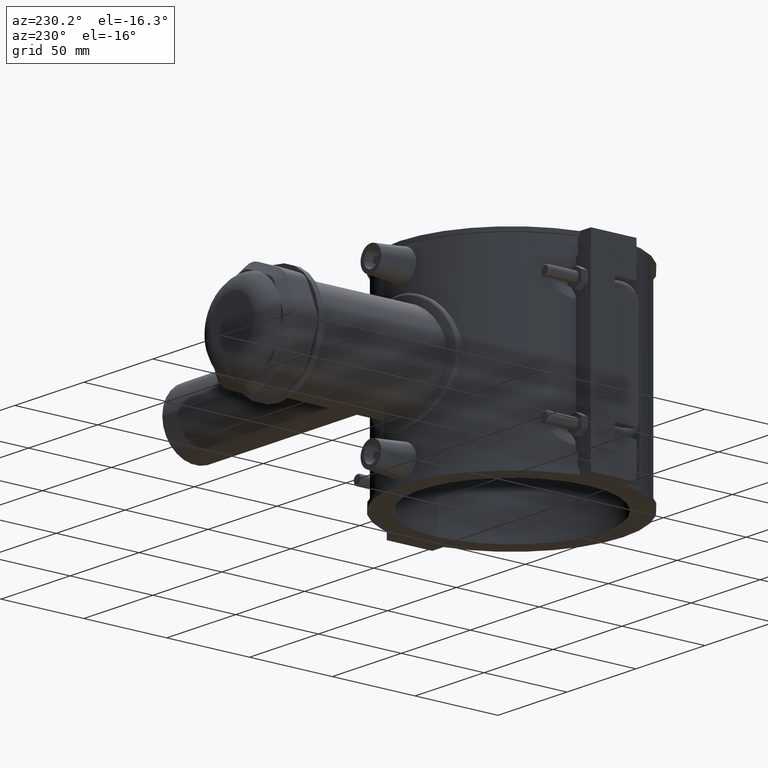
[diagram: clean part render]
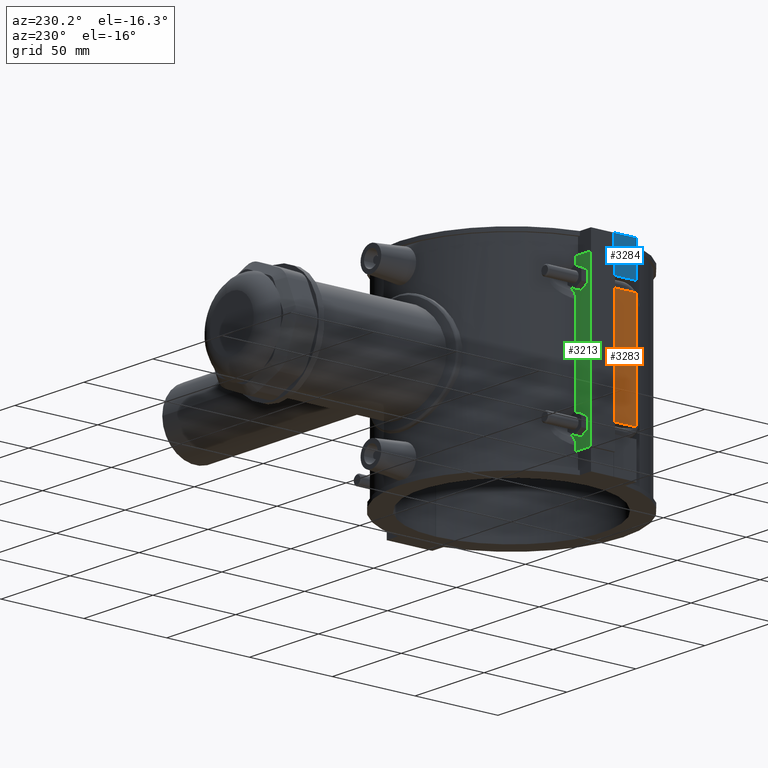
[diagram: same view with three faces highlighted in distinct colors, each labeled with its STEP entity id]
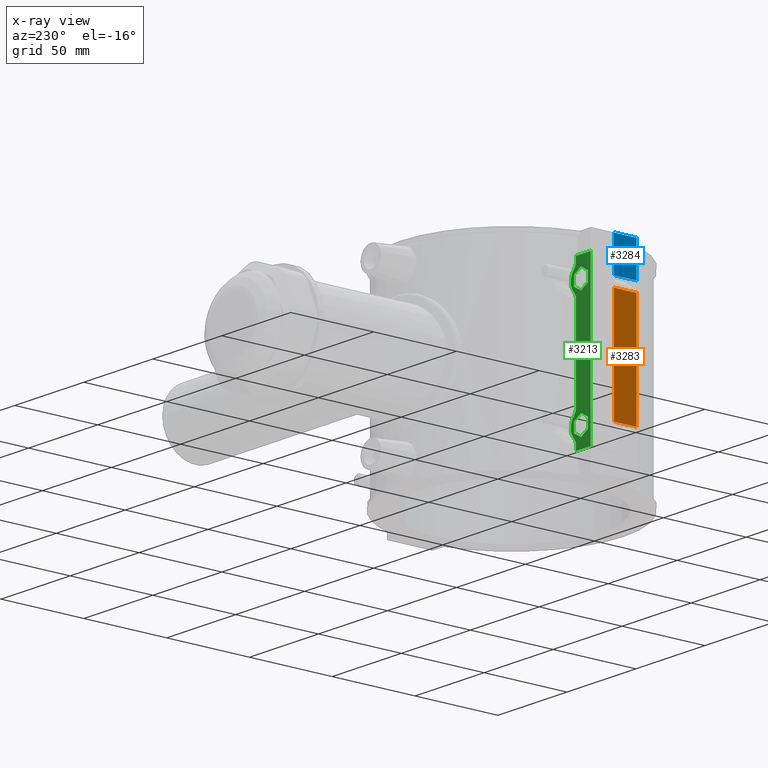
[diagram: x-ray of the same camera — body ghosted, the three highlighted faces saturated]
A machine part, auxiliary view with three faces highlighted in distinct colors.
The next image is the same camera in x-ray (body ghosted, the three faces saturated) — at least one of them is partly hidden behind the body in this view.
Their STEP definitions:

[orange] entity #3283 — the highlighted planar face has unit normal (-1, 0, 0).
#250=LINE('',#6394,#537);
#253=LINE('',#6399,#540);
#255=LINE('',#6403,#542);
#270=LINE('',#6435,#557);
#537=VECTOR('',#4273,13.7);
#540=VECTOR('',#4278,64.8);
#542=VECTOR('',#4282,13.7);
#557=VECTOR('',#4317,64.8);
#698=PLANE('',#3560);
#1033=FACE_OUTER_BOUND('',#1258,.T.);
#1258=EDGE_LOOP('',(#2835,#2836,#2837,#2838));
#1635=VERTEX_POINT('',#6391);
#1636=VERTEX_POINT('',#6393);
#1637=VERTEX_POINT('',#6397);
#1638=VERTEX_POINT('',#6401);
#2046=EDGE_CURVE('',#1636,#1635,#250,.T.);
#2049=EDGE_CURVE('',#1635,#1637,#253,.T.);
#2051=EDGE_CURVE('',#1637,#1638,#255,.T.);
#2068=EDGE_CURVE('',#1638,#1636,#270,.T.);
#2835=ORIENTED_EDGE('',*,*,#2051,.T.);
#2836=ORIENTED_EDGE('',*,*,#2068,.T.);
#2837=ORIENTED_EDGE('',*,*,#2046,.T.);
#2838=ORIENTED_EDGE('',*,*,#2049,.T.);
#3283=ADVANCED_FACE('',(#1033),#698,.T.);
#3560=AXIS2_PLACEMENT_3D('',#6434,#4315,#4316);
#4273=DIRECTION('',(0.,-1.,0.));
#4278=DIRECTION('',(0.,0.,1.));
#4282=DIRECTION('',(0.,1.,0.));
#4315=DIRECTION('center_axis',(-1.,0.,0.));
#4316=DIRECTION('ref_axis',(0.,-1.,0.));
#4317=DIRECTION('',(0.,0.,-1.));
#6391=CARTESIAN_POINT('',(-74.,-13.75,-32.4));
#6393=CARTESIAN_POINT('',(-74.,-0.0500000000000078,-32.4));
#6394=CARTESIAN_POINT('',(-74.,3.33066907387547E-15,-32.4));
#6397=CARTESIAN_POINT('',(-74.,-13.75,32.4));
#6399=CARTESIAN_POINT('',(-74.,-13.75,0.));
#6401=CARTESIAN_POINT('',(-74.,-0.0500000000000078,32.4));
#6403=CARTESIAN_POINT('',(-74.,3.33066907387547E-15,32.4));
#6434=CARTESIAN_POINT('Origin',(-74.,13.75,0.));
#6435=CARTESIAN_POINT('',(-74.,-0.0500000000000078,-29.5));

[blue] entity #3284 — the highlighted planar face has unit normal (-1, 0, 0).
#119=LINE('',#5488,#406);
#258=LINE('',#6409,#545);
#271=LINE('',#6438,#558);
#272=LINE('',#6439,#559);
#406=VECTOR('',#3918,20.6);
#545=VECTOR('',#4287,13.7);
#558=VECTOR('',#4320,13.7);
#559=VECTOR('',#4321,20.6);
#699=PLANE('',#3561);
#1034=FACE_OUTER_BOUND('',#1259,.T.);
#1259=EDGE_LOOP('',(#2839,#2840,#2841,#2842));
#1484=VERTEX_POINT('',#5485);
#1485=VERTEX_POINT('',#5487);
#1640=VERTEX_POINT('',#6408);
#1646=VERTEX_POINT('',#6437);
#1842=EDGE_CURVE('',#1485,#1484,#119,.T.);
#2054=EDGE_CURVE('',#1640,#1485,#258,.T.);
#2069=EDGE_CURVE('',#1646,#1484,#271,.T.);
#2070=EDGE_CURVE('',#1646,#1640,#272,.T.);
#2839=ORIENTED_EDGE('',*,*,#2054,.T.);
#2840=ORIENTED_EDGE('',*,*,#1842,.T.);
#2841=ORIENTED_EDGE('',*,*,#2069,.F.);
#2842=ORIENTED_EDGE('',*,*,#2070,.T.);
#3284=ADVANCED_FACE('',(#1034),#699,.T.);
#3561=AXIS2_PLACEMENT_3D('',#6436,#4318,#4319);
#3918=DIRECTION('',(0.,0.,1.));
#4287=DIRECTION('',(0.,-1.,0.));
#4318=DIRECTION('center_axis',(-1.,0.,0.));
#4319=DIRECTION('ref_axis',(0.,-1.,0.));
#4320=DIRECTION('',(0.,-1.,0.));
#4321=DIRECTION('',(0.,0.,-1.));
#5485=CARTESIAN_POINT('',(-74.,-13.75,59.));
#5487=CARTESIAN_POINT('',(-74.,-13.75,38.4));
#5488=CARTESIAN_POINT('',(-74.,-13.75,0.));
#6408=CARTESIAN_POINT('',(-74.,-0.0500000000000078,38.4));
#6409=CARTESIAN_POINT('',(-74.,3.33066907387547E-15,38.4));
#6436=CARTESIAN_POINT('Origin',(-74.,13.75,0.));
#6437=CARTESIAN_POINT('',(-74.,-0.0500000000000078,59.));
#6438=CARTESIAN_POINT('',(-74.,13.75,59.));
#6439=CARTESIAN_POINT('',(-74.,-0.0500000000000078,-29.5));

[green] entity #3213 — the highlighted planar face has unit normal (-0, -1, 0).
#136=LINE('',#5567,#423);
#137=LINE('',#5582,#424);
#138=LINE('',#5599,#425);
#155=LINE('',#5766,#442);
#156=LINE('',#5769,#443);
#160=LINE('',#5776,#447);
#161=LINE('',#5813,#448);
#162=LINE('',#5815,#449);
#163=LINE('',#5817,#450);
#164=LINE('',#5819,#451);
#165=LINE('',#5821,#452);
#166=LINE('',#5822,#453);
#167=LINE('',#5825,#454);
#168=LINE('',#5827,#455);
#169=LINE('',#5829,#456);
#170=LINE('',#5831,#457);
#171=LINE('',#5833,#458);
#172=LINE('',#5834,#459);
#423=VECTOR('',#3965,2.44823811899649);
#424=VECTOR('',#3966,52.096476237993);
#425=VECTOR('',#3967,2.4482381189965);
#442=VECTOR('',#4000,10.6693113669689);
#443=VECTOR('',#4003,10.6693113669689);
#447=VECTOR('',#4009,94.4);
#448=VECTOR('',#4014,5.77350269189626);
#449=VECTOR('',#4015,5.77350269189626);
#450=VECTOR('',#4016,5.77350269189625);
#451=VECTOR('',#4017,5.77350269189625);
#452=VECTOR('',#4018,5.77350269189626);
#453=VECTOR('',#4019,5.77350269189626);
#454=VECTOR('',#4020,5.77350269189627);
#455=VECTOR('',#4021,5.77350269189626);
#456=VECTOR('',#4022,5.77350269189626);
#457=VECTOR('',#4023,5.77350269189626);
#458=VECTOR('',#4024,5.77350269189626);
#459=VECTOR('',#4025,5.77350269189624);
#652=PLANE('',#3461);
#789=CIRCLE('',#3462,7.5);
#790=CIRCLE('',#3463,7.5);
#856=FACE_BOUND('',#1167,.T.);
#857=FACE_BOUND('',#1168,.T.);
#963=FACE_OUTER_BOUND('',#1166,.T.);
#1166=EDGE_LOOP('',(#2521,#2522,#2523,#2524,#2525,#2526,#2527,#2528,#2529,
#2530,#2531,#2532));
#1167=EDGE_LOOP('',(#2533,#2534,#2535,#2536,#2537,#2538));
#1168=EDGE_LOOP('',(#2539,#2540,#2541,#2542,#2543,#2544));
#1354=B_SPLINE_CURVE_WITH_KNOTS('',3,(#5778,#5779,#5780,#5781,#5782,#5783),
 .UNSPECIFIED.,.F.,.F.,(4,2,4),(-0.458823751657339,-0.217672691134225,0.),
 .UNSPECIFIED.);
#1355=B_SPLINE_CURVE_WITH_KNOTS('',3,(#5786,#5787,#5788,#5789,#5790,#5791,
#5792,#5793),.UNSPECIFIED.,.F.,.F.,(4,2,2,4),(-0.458834928044769,-0.342590814528187,
-0.226896731321486,0.),.UNSPECIFIED.);
#1356=B_SPLINE_CURVE_WITH_KNOTS('',3,(#5795,#5796,#5797,#5798,#5799,#5800),
 .UNSPECIFIED.,.F.,.F.,(4,2,4),(-0.458823751657315,-0.217672691134784,0.),
 .UNSPECIFIED.);
#1357=B_SPLINE_CURVE_WITH_KNOTS('',3,(#5803,#5804,#5805,#5806,#5807,#5808,
#5809,#5810),.UNSPECIFIED.,.F.,.F.,(4,2,2,4),(-0.45883492804483,-0.34259081453153,
-0.226896731327658,0.),.UNSPECIFIED.);
#1507=VERTEX_POINT('',#5564);
#1508=VERTEX_POINT('',#5566);
#1509=VERTEX_POINT('',#5568);
#1510=VERTEX_POINT('',#5581);
#1511=VERTEX_POINT('',#5583);
#1512=VERTEX_POINT('',#5598);
#1535=VERTEX_POINT('',#5764);
#1536=VERTEX_POINT('',#5768);
#1539=VERTEX_POINT('',#5777);
#1540=VERTEX_POINT('',#5784);
#1541=VERTEX_POINT('',#5794);
#1542=VERTEX_POINT('',#5801);
#1543=VERTEX_POINT('',#5811);
#1544=VERTEX_POINT('',#5812);
#1545=VERTEX_POINT('',#5814);
#1546=VERTEX_POINT('',#5816);
#1547=VERTEX_POINT('',#5818);
#1548=VERTEX_POINT('',#5820);
#1549=VERTEX_POINT('',#5823);
#1550=VERTEX_POINT('',#5824);
#1551=VERTEX_POINT('',#5826);
#1552=VERTEX_POINT('',#5828);
#1553=VERTEX_POINT('',#5830);
#1554=VERTEX_POINT('',#5832);
#1870=EDGE_CURVE('',#1507,#1508,#136,.T.);
#1872=EDGE_CURVE('',#1509,#1510,#137,.T.);
#1874=EDGE_CURVE('',#1511,#1512,#138,.T.);
#1902=EDGE_CURVE('',#1507,#1535,#155,.T.);
#1903=EDGE_CURVE('',#1536,#1512,#156,.T.);
#1907=EDGE_CURVE('',#1535,#1536,#160,.T.);
#1908=EDGE_CURVE('',#1539,#1511,#1354,.T.);
#1909=EDGE_CURVE('',#1540,#1539,#789,.T.);
#1910=EDGE_CURVE('',#1510,#1540,#1355,.T.);
#1911=EDGE_CURVE('',#1541,#1509,#1356,.T.);
#1912=EDGE_CURVE('',#1542,#1541,#790,.T.);
#1913=EDGE_CURVE('',#1508,#1542,#1357,.T.);
#1914=EDGE_CURVE('',#1543,#1544,#161,.T.);
#1915=EDGE_CURVE('',#1545,#1543,#162,.T.);
#1916=EDGE_CURVE('',#1546,#1545,#163,.T.);
#1917=EDGE_CURVE('',#1547,#1546,#164,.T.);
#1918=EDGE_CURVE('',#1548,#1547,#165,.T.);
#1919=EDGE_CURVE('',#1544,#1548,#166,.T.);
#1920=EDGE_CURVE('',#1549,#1550,#167,.T.);
#1921=EDGE_CURVE('',#1551,#1549,#168,.T.);
#1922=EDGE_CURVE('',#1552,#1551,#169,.T.);
#1923=EDGE_CURVE('',#1553,#1552,#170,.T.);
#1924=EDGE_CURVE('',#1554,#1553,#171,.T.);
#1925=EDGE_CURVE('',#1550,#1554,#172,.T.);
#2521=ORIENTED_EDGE('',*,*,#1870,.F.);
#2522=ORIENTED_EDGE('',*,*,#1902,.T.);
#2523=ORIENTED_EDGE('',*,*,#1907,.T.);
#2524=ORIENTED_EDGE('',*,*,#1903,.T.);
#2525=ORIENTED_EDGE('',*,*,#1874,.F.);
#2526=ORIENTED_EDGE('',*,*,#1908,.F.);
#2527=ORIENTED_EDGE('',*,*,#1909,.F.);
#2528=ORIENTED_EDGE('',*,*,#1910,.F.);
#2529=ORIENTED_EDGE('',*,*,#1872,.F.);
#2530=ORIENTED_EDGE('',*,*,#1911,.F.);
#2531=ORIENTED_EDGE('',*,*,#1912,.F.);
#2532=ORIENTED_EDGE('',*,*,#1913,.F.);
#2533=ORIENTED_EDGE('',*,*,#1914,.F.);
#2534=ORIENTED_EDGE('',*,*,#1915,.F.);
#2535=ORIENTED_EDGE('',*,*,#1916,.F.);
#2536=ORIENTED_EDGE('',*,*,#1917,.F.);
#2537=ORIENTED_EDGE('',*,*,#1918,.F.);
#2538=ORIENTED_EDGE('',*,*,#1919,.F.);
#2539=ORIENTED_EDGE('',*,*,#1920,.F.);
#2540=ORIENTED_EDGE('',*,*,#1921,.F.);
#2541=ORIENTED_EDGE('',*,*,#1922,.F.);
#2542=ORIENTED_EDGE('',*,*,#1923,.F.);
#2543=ORIENTED_EDGE('',*,*,#1924,.F.);
#2544=ORIENTED_EDGE('',*,*,#1925,.F.);
#3213=ADVANCED_FACE('',(#963,#856,#857),#652,.F.);
#3461=AXIS2_PLACEMENT_3D('',#5775,#4007,#4008);
#3462=AXIS2_PLACEMENT_3D('',#5785,#4010,#4011);
#3463=AXIS2_PLACEMENT_3D('',#5802,#4012,#4013);
#3965=DIRECTION('',(0.,0.,1.));
#3966=DIRECTION('',(0.,0.,1.));
#3967=DIRECTION('',(0.,0.,1.));
#4000=DIRECTION('',(-1.,2.59621384220037E-16,0.));
#4003=DIRECTION('',(1.,-2.59621384220037E-16,0.));
#4007=DIRECTION('center_axis',(-2.59621384220037E-16,-1.,0.));
#4008=DIRECTION('ref_axis',(1.,-1.77635683940025E-16,0.));
#4009=DIRECTION('',(0.,0.,1.));
#4010=DIRECTION('center_axis',(-2.59621384220037E-16,-1.,0.));
#4011=DIRECTION('ref_axis',(1.,0.,0.));
#4012=DIRECTION('center_axis',(-2.59621384220037E-16,-1.,0.));
#4013=DIRECTION('ref_axis',(1.,0.,0.));
#4014=DIRECTION('',(-0.866025403784439,2.24838714100232E-16,0.5));
#4015=DIRECTION('',(-0.866025403784438,2.24838714100232E-16,-0.5));
#4016=DIRECTION('',(0.,0.,-1.));
#4017=DIRECTION('',(0.866025403784439,-2.24838714100232E-16,-0.5));
#4018=DIRECTION('',(0.866025403784439,-2.24838714100232E-16,0.499999999999999));
#4019=DIRECTION('',(0.,0.,1.));
#4020=DIRECTION('',(-0.866025403784439,2.24838714100232E-16,-0.499999999999999));
#4021=DIRECTION('',(0.,0.,-1.));
#4022=DIRECTION('',(0.866025403784438,-2.24838714100232E-16,-0.5));
#4023=DIRECTION('',(0.866025403784438,-2.24838714100232E-16,0.5));
#4024=DIRECTION('',(0.,0.,1.));
#4025=DIRECTION('',(-0.866025403784438,2.24838714100232E-16,0.500000000000002));
#5564=CARTESIAN_POINT('',(-64.3306886330311,14.7500000000003,-47.2));
#5566=CARTESIAN_POINT('',(-64.3306886330311,14.7500000000003,-44.7517618810035));
#5567=CARTESIAN_POINT('',(-64.3306886330311,14.7500000000003,0.));
#5568=CARTESIAN_POINT('',(-64.3306886330311,14.7500000000003,-26.0482381189965));
#5581=CARTESIAN_POINT('',(-64.3306886330311,14.7500000000003,26.0482381189965));
#5582=CARTESIAN_POINT('',(-64.3306886330311,14.7500000000003,0.));
#5583=CARTESIAN_POINT('',(-64.3306886330311,14.7500000000003,44.7517618810035));
#5598=CARTESIAN_POINT('',(-64.3306886330311,14.7500000000003,47.2));
#5599=CARTESIAN_POINT('',(-64.3306886330311,14.7500000000003,0.));
#5764=CARTESIAN_POINT('',(-75.,14.7500000000003,-47.2));
#5766=CARTESIAN_POINT('',(-75.,14.7500000000003,-47.2));
#5768=CARTESIAN_POINT('',(-75.,14.7500000000003,47.2));
#5769=CARTESIAN_POINT('',(-75.,14.7500000000003,47.2));
#5775=CARTESIAN_POINT('Origin',(-75.,14.7500000000003,0.));
#5776=CARTESIAN_POINT('',(-75.,14.7500000000003,0.));
#5777=CARTESIAN_POINT('',(-62.6198573858428,14.75,40.6253292194205));
#5778=CARTESIAN_POINT('Ctrl Pts',(-62.6198573858427,14.7500000000003,40.6253292194204));
#5779=CARTESIAN_POINT('Ctrl Pts',(-63.1807535558359,14.7500000000003,41.202843335676));
#5780=CARTESIAN_POINT('Ctrl Pts',(-63.626204742031,14.7500000000666,41.8844782976162));
#5781=CARTESIAN_POINT('Ctrl Pts',(-64.189574228392,14.7500000000666,43.3078014067467));
#5782=CARTESIAN_POINT('Ctrl Pts',(-64.3306886330311,14.7500000000003,44.0261862438894));
#5783=CARTESIAN_POINT('Ctrl Pts',(-64.3306886330311,14.7500000000003,44.7517618810035));
#5784=CARTESIAN_POINT('',(-62.6198573858428,14.75,30.1746707805795));
#5785=CARTESIAN_POINT('Origin',(-68.,14.7500000000003,35.4));
#5786=CARTESIAN_POINT('Ctrl Pts',(-64.3306886330311,14.7500000000003,26.0482381189965));
#5787=CARTESIAN_POINT('Ctrl Pts',(-64.3306886330311,14.7500000000003,26.4354148289453));
#5788=CARTESIAN_POINT('Ctrl Pts',(-64.2904691678688,14.7499999999994,26.821481807677));
#5789=CARTESIAN_POINT('Ctrl Pts',(-64.1336815025168,14.7499999999994,27.5780380215837));
#5790=CARTESIAN_POINT('Ctrl Pts',(-64.0178787341523,14.7499999987256,27.9466781568099));
#5791=CARTESIAN_POINT('Ctrl Pts',(-63.5721029449198,14.7499999987256,28.9974095597526));
#5792=CARTESIAN_POINT('Ctrl Pts',(-63.1467952169383,14.7500000000003,29.6321211036037));
#5793=CARTESIAN_POINT('Ctrl Pts',(-62.6198573858427,14.7500000000003,30.1746707805796));
#5794=CARTESIAN_POINT('',(-62.6198573858428,14.75,-30.1746707805795));
#5795=CARTESIAN_POINT('Ctrl Pts',(-62.6198573858427,14.7500000000003,-30.1746707805796));
#5796=CARTESIAN_POINT('Ctrl Pts',(-63.1807535558345,14.7500000000003,-29.5971566643254));
#5797=CARTESIAN_POINT('Ctrl Pts',(-63.6262047420289,14.7500000000666,-28.915521702387));
#5798=CARTESIAN_POINT('Ctrl Pts',(-64.1895742283913,14.7500000000666,-27.4921985932569));
#5799=CARTESIAN_POINT('Ctrl Pts',(-64.3306886330311,14.7500000000003,-26.7738137561124));
#5800=CARTESIAN_POINT('Ctrl Pts',(-64.3306886330311,14.7500000000003,-26.0482381189965));
#5801=CARTESIAN_POINT('',(-62.6198573858428,14.75,-40.6253292194205));
#5802=CARTESIAN_POINT('Origin',(-68.,14.7500000000003,-35.4));
#5803=CARTESIAN_POINT('Ctrl Pts',(-64.3306886330311,14.7500000000003,-44.7517618810035));
#5804=CARTESIAN_POINT('Ctrl Pts',(-64.3306886330311,14.7500000000003,-44.3645851710657));
#5805=CARTESIAN_POINT('Ctrl Pts',(-64.2904691678711,14.7499999999994,-43.9785181923448));
#5806=CARTESIAN_POINT('Ctrl Pts',(-64.1336815025276,14.7499999999994,-43.2219619784574));
#5807=CARTESIAN_POINT('Ctrl Pts',(-64.0178787341689,14.7499999987256,-42.8533218432394));
#5808=CARTESIAN_POINT('Ctrl Pts',(-63.5721029449429,14.7499999987256,-41.8025904402819));
#5809=CARTESIAN_POINT('Ctrl Pts',(-63.1467952169526,14.7500000000003,-41.167878896411));
#5810=CARTESIAN_POINT('Ctrl Pts',(-62.6198573858427,14.7500000000003,-40.6253292194204));
#5811=CARTESIAN_POINT('',(-68.0000000000001,14.7500000000003,29.6264973081037));
#5812=CARTESIAN_POINT('',(-73.0000000000001,14.7500000000003,32.5132486540519));
#5813=CARTESIAN_POINT('',(-66.7106751765077,14.7500000000003,28.8821052741876));
#5814=CARTESIAN_POINT('',(-63.0000000000001,14.7500000000003,32.5132486540519));
#5815=CARTESIAN_POINT('',(-77.0393248234923,14.7500000000003,24.407640687968));
#5816=CARTESIAN_POINT('',(-63.0000000000001,14.7500000000003,38.2867513459481));
#5817=CARTESIAN_POINT('',(-63.0000000000001,14.7500000000003,16.2566243270259));
#5818=CARTESIAN_POINT('',(-68.,14.7500000000003,41.1735026918963));
#5819=CARTESIAN_POINT('',(-59.2106751765077,14.7500000000003,36.0989836390579));
#5820=CARTESIAN_POINT('',(-73.0000000000001,14.7500000000003,38.2867513459481));
#5821=CARTESIAN_POINT('',(-79.5393248234923,14.7500000000003,34.5112703987865));
#5822=CARTESIAN_POINT('',(-73.0000000000001,14.7500000000003,19.1433756729741));
#5823=CARTESIAN_POINT('',(-63.,14.7500000000003,-38.2867513459481));
#5824=CARTESIAN_POINT('',(-68.0000000000001,14.7500000000003,-41.1735026918963));
#5825=CARTESIAN_POINT('',(-61.7106751765078,14.7500000000003,-37.542359312032));
#5826=CARTESIAN_POINT('',(-63.,14.7500000000003,-32.5132486540519));
#5827=CARTESIAN_POINT('',(-63.,14.7500000000003,-19.1433756729741));
#5828=CARTESIAN_POINT('',(-68.,14.7500000000003,-29.6264973081037));
#5829=CARTESIAN_POINT('',(-74.5393248234923,14.7500000000003,-25.8510163609421));
#5830=CARTESIAN_POINT('',(-73.,14.7500000000003,-32.5132486540519));
#5831=CARTESIAN_POINT('',(-64.2106751765077,14.7500000000003,-27.4387296012135));
#5832=CARTESIAN_POINT('',(-73.,14.7500000000003,-38.2867513459481));
#5833=CARTESIAN_POINT('',(-73.,14.7500000000003,-16.2566243270259));
#5834=CARTESIAN_POINT('',(-82.0393248234923,14.7500000000003,-33.0678947258124));